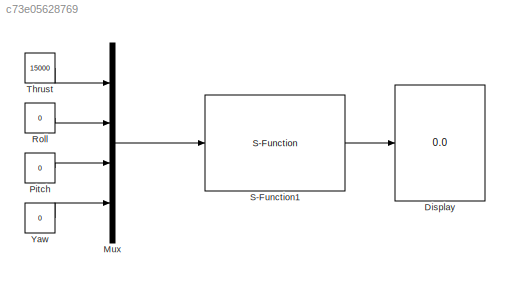
MODEL slx_c73e05628769
KIND model
CONFIG AbsTol = auto
CONFIG FixedStep = auto
CONFIG MaxStep = auto
CONFIG MinStep = auto
CONFIG RelTol = 1e-3
CONFIG SampleTimeConstraint = Unconstrained
CONFIG Solver = ode45
CONFIG SolverMode = Auto
CONFIG SolverName = ode45
CONFIG StartTime = 0.0
CONFIG StopTime = inf
BLOCK [Display] Display
  Decimation = 1
  Ports = [1]
BLOCK [Mux] Mux
  DisplayOption = bar
  Ports = [4, 1]
BLOCK [Constant] Pitch
  Value = 0
BLOCK [Constant] Roll
  Value = 0
BLOCK [Reference] S-Function1  REF=CrazyFlie_lib/S-Function
  Ports = [1, 1]
  SourceBlock = CrazyFlie_lib/S-Function
BLOCK [Constant] Thrust
  Value = 15000
BLOCK [Constant] Yaw
  Value = 0
LINE Mux:1 -> S-Function1:1
LINE Pitch:1 -> Mux:3
LINE Roll:1 -> Mux:2
LINE S-Function1:1 -> Display:1
LINE Thrust:1 -> Mux:1
LINE Yaw:1 -> Mux:4
